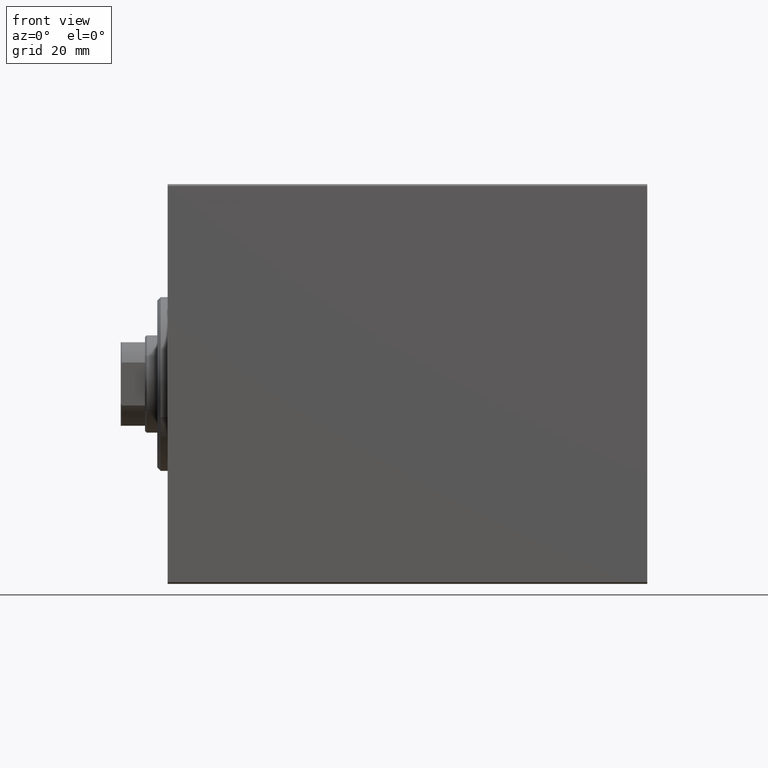
[diagram: clean part render]
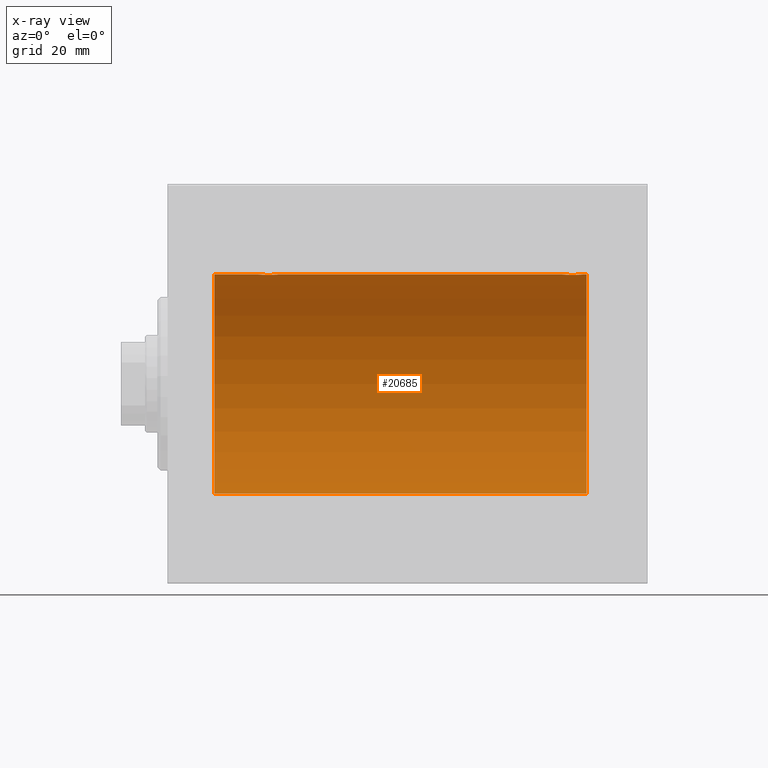
[diagram: x-ray — body ghosted, one internal face saturated and labeled with its STEP entity id]
A machine part, front view, then the same camera in x-ray: the body is ghosted and one INTERNAL B-rep face — a face not visible from any outside direction — is saturated and labeled: STEP entity #20685.
In plain terms, the highlighted cylindrical surface (partial cylindrical patch) has radius 31.5 mm, axis along (-1, -0, -0).
Its self-contained STEP definition (entity closure, byte-faithful):
#961 = CARTESIAN_POINT ( 'NONE',  ( 120.5000000000000000, 0.000000000000000000, 31.50000000000000000 ) ) ;
#1624 = CARTESIAN_POINT ( 'NONE',  ( 28.60640401948893086, 2.980533683278877355, 31.35869737338551388 ) ) ;
#1814 = CARTESIAN_POINT ( 'NONE',  ( 114.1148804265179280, 1.830131931565288195, 31.44721086712686642 ) ) ;
#2040 = CARTESIAN_POINT ( 'NONE',  ( 115.1711104428413392, 2.696796994793650981, 31.38443855856935016 ) ) ;
#2060 = CARTESIAN_POINT ( 'NONE',  ( 30.98257411773193937, 2.260013192167872109, 31.41912713670170376 ) ) ;
#3379 = CARTESIAN_POINT ( 'NONE',  ( 26.00000000000001066, 0.1958503357044829030, 31.50000000000000711 ) ) ;
#3500 = EDGE_CURVE ( 'NONE', #15513, #42584, #23145, .T. ) ;
#4754 = CARTESIAN_POINT ( 'NONE',  ( 28.80529250725175316, 3.000070712257528971, 31.35681067529873189 ) ) ;
#4950 = DIRECTION ( 'NONE',  ( -1.000000000000000000, -0.000000000000000000, -0.000000000000000000 ) ) ;
#4976 = CARTESIAN_POINT ( 'NONE',  ( 30.83158836027363492, 2.384155341399014638, 31.40983767558391193 ) ) ;
#5168 = CARTESIAN_POINT ( 'NONE',  ( 114.9955765329607686, 2.602863964129819241, 31.39246667950590464 ) ) ;
#5612 = CARTESIAN_POINT ( 'NONE',  ( 113.8036818622372124, 1.329867798385260702, 31.47244047903475916 ) ) ;
#5642 = VECTOR ( 'NONE', #42349, 1000.000000000000000 ) ;
#6048 = CARTESIAN_POINT ( 'NONE',  ( 118.8859162663948155, 1.829162098167821604, 31.44727042639136627 ) ) ;
#6491 = ORIENTED_EDGE ( 'NONE', *, *, #15650, .T. ) ;
#6510 = DIRECTION ( 'NONE',  ( 0.000000000000000000, 0.000000000000000000, 1.000000000000000000 ) ) ;
#6533 = VERTEX_POINT ( 'NONE', #30874 ) ;
#6721 = CARTESIAN_POINT ( 'NONE',  ( 26.09639262129909554, 0.7794402936641312563, 31.49094275383852093 ) ) ;
#7422 = CARTESIAN_POINT ( 'NONE',  ( 120.5000000000000000, 0.000000000000000000, 0.000000000000000000 ) ) ;
#8094 = CARTESIAN_POINT ( 'NONE',  ( 31.25924903376736097, 1.983444873066708247, 31.43779820687992554 ) ) ;
#8516 = CARTESIAN_POINT ( 'NONE',  ( 116.1064040194889486, 2.980533683278887569, 31.35869737338551388 ) ) ;
#8726 = CARTESIAN_POINT ( 'NONE',  ( 113.8976413038693636, 1.505293155307508624, 31.46443304312125733 ) ) ;
#8940 = CARTESIAN_POINT ( 'NONE',  ( 115.5344721955793972, 2.847177118681589292, 31.37115363072576102 ) ) ;
#9385 = CARTESIAN_POINT ( 'NONE',  ( 119.4805248189751268, 0.3933386891556650000, 31.49812829325317054 ) ) ;
#9458 = CARTESIAN_POINT ( 'NONE',  ( 120.5000000000000000, 3.857637417314162689E-15, -31.50000000000000000 ) ) ;
#10538 = ORIENTED_EDGE ( 'NONE', *, *, #3500, .T. ) ;
#11864 = CARTESIAN_POINT ( 'NONE',  ( 119.3464921352731238, 0.9675486622706157558, 31.48566161620712478 ) ) ;
#11887 = CARTESIAN_POINT ( 'NONE',  ( 30.50363134844576507, 2.603460270751690508, 31.39242096616744249 ) ) ;
#12088 = CARTESIAN_POINT ( 'NONE',  ( 119.5000000000000284, -2.415502498297804861E-16, 31.50000000000000000 ) ) ;
#12236 = EDGE_CURVE ( 'NONE', #20341, #20384, #39401, .T. ) ;
#12331 = CARTESIAN_POINT ( 'NONE',  ( 26.73894082546058826, 1.981627308739907001, 31.43792063499534351 ) ) ;
#12750 = CARTESIAN_POINT ( 'NONE',  ( 117.2789700859314479, 2.903824817694236504, 31.36589387714387200 ) ) ;
#12773 = CARTESIAN_POINT ( 'NONE',  ( 26.01962964533704081, 0.3947854228308197988, 31.49811339059600002 ) ) ;
#13174 = CIRCLE ( 'NONE', #13887, 31.50000000000000000 ) ;
#13409 = ORIENTED_EDGE ( 'NONE', *, *, #12236, .F. ) ;
#13887 = AXIS2_PLACEMENT_3D ( 'NONE', #19795, #26467, #16001 ) ;
#15004 = ORIENTED_EDGE ( 'NONE', *, *, #28123, .T. ) ;
#15260 = EDGE_CURVE ( 'NONE', #26903, #23937, #13174, .T. ) ;
#15434 = CARTESIAN_POINT ( 'NONE',  ( 118.3315883602736420, 2.384155341399023520, 31.40983767558390483 ) ) ;
#15513 = VERTEX_POINT ( 'NONE', #21097 ) ;
#15650 = EDGE_CURVE ( 'NONE', #20341, #15513, #20604, .T. ) ;
#15870 = CARTESIAN_POINT ( 'NONE',  ( 113.5963926212991311, 0.7794402936641361412, 31.49094275383853514 ) ) ;
#16001 = DIRECTION ( 'NONE',  ( 0.000000000000000000, 0.000000000000000000, 1.000000000000000000 ) ) ;
#16691 = ORIENTED_EDGE ( 'NONE', *, *, #40157, .T. ) ;
#16749 = CARTESIAN_POINT ( 'NONE',  ( 113.5000000000000000, 0.1958503357044810711, 31.50000000000000000 ) ) ;
#17704 = DIRECTION ( 'NONE',  ( -1.000000000000000000, -0.000000000000000000, -0.000000000000000000 ) ) ;
#18635 = CARTESIAN_POINT ( 'NONE',  ( 120.5000000000000000, 0.000000000000000000, 31.50000000000000000 ) ) ;
#18732 = LINE ( 'NONE', #38562, #5642 ) ;
#18801 = CARTESIAN_POINT ( 'NONE',  ( 31.90423806629734926, 0.7769457993854306244, 31.49100119919085472 ) ) ;
#19217 = CARTESIAN_POINT ( 'NONE',  ( 113.6531399839437597, 0.9664718879465890033, 31.48569500832682522 ) ) ;
#19458 = CARTESIAN_POINT ( 'NONE',  ( 26.39764130386935648, 1.505293155307497965, 31.46443304312125022 ) ) ;
#19572 = VECTOR ( 'NONE', #43796, 1000.000000000000000 ) ;
#19795 = CARTESIAN_POINT ( 'NONE',  ( 13.49999999999999822, 0.000000000000000000, 0.000000000000000000 ) ) ;
#20341 = VERTEX_POINT ( 'NONE', #18635 ) ;
#20384 = VERTEX_POINT ( 'NONE', #9458 ) ;
#20545 = CARTESIAN_POINT ( 'NONE',  ( 120.5000000000000000, 0.000000000000000000, 0.000000000000000000 ) ) ;
#20604 = LINE ( 'NONE', #33543, #19572 ) ;
#20685 = ADVANCED_FACE ( 'NONE', ( #21032 ), #28586, .F. ) ;
#20750 = VECTOR ( 'NONE', #4950, 1000.000000000000000 ) ;
#21032 = FACE_OUTER_BOUND ( 'NONE', #43804, .T. ) ;
#21097 = CARTESIAN_POINT ( 'NONE',  ( 119.5000000000000284, -2.415502498297804861E-16, 31.50000000000000000 ) ) ;
#21697 = CARTESIAN_POINT ( 'NONE',  ( 32.00000000000000000, -3.906065418435112189E-16, 31.50000000000000000 ) ) ;
#22139 = CARTESIAN_POINT ( 'NONE',  ( 27.67111044284136057, 2.696796994793635438, 31.38443855856935016 ) ) ;
#22553 = CARTESIAN_POINT ( 'NONE',  ( 114.5191130087499545, 2.261707786034461432, 31.41901301017587755 ) ) ;
#22996 = CARTESIAN_POINT ( 'NONE',  ( 119.1958397180050042, 1.330832861354135144, 31.47239936387595449 ) ) ;
#23145 = B_SPLINE_CURVE_WITH_KNOTS ( 'NONE', 3,
 ( #12088, #39476, #9385, #35913, #11864, #22996, #36138, #6048, #32582, #28787, #15434, #25463, #43281, #35703, #12750, #25895, #42397, #32797, #8516, #25677, #8940, #2040, #5168, #32364, #22553, #29229, #1814, #8726, #5612, #19217, #15870, #24086, #16749, #30331 ),
 .UNSPECIFIED., .F., .F.,
 ( 4, 2, 2, 2, 2, 2, 2, 2, 2, 2, 2, 2, 2, 2, 2, 2, 4 ),
 ( 2.347214371482653179E-19, 0.0005865426616959166020, 0.001173085323391832770, 0.001759627985087748722, 0.002346170646783665107, 0.002932713308479581275, 0.003519255970175497444, 0.004105798631871413612, 0.004692341293567330214, 0.005278883955263246816, 0.005865426616959162551, 0.006451969278655079153, 0.007038511940350995755, 0.007625054602046912357, 0.008211597263742828959, 0.008798139925438744693, 0.009384682587134660428 ),
 .UNSPECIFIED. ) ;
#23676 = CARTESIAN_POINT ( 'NONE',  ( 26.30368186223717331, 1.329867798385257815, 31.47244047903475206 ) ) ;
#23937 = VERTEX_POINT ( 'NONE', #40433 ) ;
#24086 = CARTESIAN_POINT ( 'NONE',  ( 113.5196296453370621, 0.3947854228308227409, 31.49811339059598581 ) ) ;
#24288 = CARTESIAN_POINT ( 'NONE',  ( 13.49999999999999822, 0.000000000000000000, 31.50000000000000000 ) ) ;
#25050 = CARTESIAN_POINT ( 'NONE',  ( 31.99999999999998579, 0.1983379036618942437, 31.50000000000000000 ) ) ;
#25231 = EDGE_CURVE ( 'NONE', #27525, #6533, #36500, .T. ) ;
#25463 = CARTESIAN_POINT ( 'NONE',  ( 118.0036313484458077, 2.603460270751700278, 31.39242096616744959 ) ) ;
#25487 = CARTESIAN_POINT ( 'NONE',  ( 28.22154160523339783, 2.903876953428266461, 31.36588880666517909 ) ) ;
#25677 = CARTESIAN_POINT ( 'NONE',  ( 115.7215416052333836, 2.903876953428275343, 31.36588880666517909 ) ) ;
#25895 = CARTESIAN_POINT ( 'NONE',  ( 116.8916265877483340, 2.980875975682594881, 31.35866508162786559 ) ) ;
#25916 = CARTESIAN_POINT ( 'NONE',  ( 26.61488042651788177, 1.830131931565276426, 31.44721086712685931 ) ) ;
#26467 = DIRECTION ( 'NONE',  ( -1.000000000000000000, 0.000000000000000000, 0.000000000000000000 ) ) ;
#26903 = VERTEX_POINT ( 'NONE', #24288 ) ;
#27525 = VERTEX_POINT ( 'NONE', #31733 ) ;
#28123 = EDGE_CURVE ( 'NONE', #42584, #27525, #31500, .T. ) ;
#28586 = CYLINDRICAL_SURFACE ( 'NONE', #42498, 31.50000000000000000 ) ;
#28595 = CARTESIAN_POINT ( 'NONE',  ( 31.69583971800497935, 1.330832861354130925, 31.47239936387596160 ) ) ;
#28714 = AXIS2_PLACEMENT_3D ( 'NONE', #20545, #30787, #6510 ) ;
#28787 = CARTESIAN_POINT ( 'NONE',  ( 118.4825741177319287, 2.260013192167880547, 31.41912713670171087 ) ) ;
#28809 = CARTESIAN_POINT ( 'NONE',  ( 31.60366586440800063, 1.503114925126257218, 31.46454030768326149 ) ) ;
#29031 = CARTESIAN_POINT ( 'NONE',  ( 29.19688046033348883, 2.999928894260092349, 31.35682424344752306 ) ) ;
#29229 = CARTESIAN_POINT ( 'NONE',  ( 114.2389408254606167, 1.981627308739915216, 31.43792063499535061 ) ) ;
#29253 = CARTESIAN_POINT ( 'NONE',  ( 27.49557653296076154, 2.602863964129807250, 31.39246667950590464 ) ) ;
#29801 = CARTESIAN_POINT ( 'NONE',  ( 113.5000000000000142, -2.116947682205846230E-23, 31.50000000000000000 ) ) ;
#30331 = CARTESIAN_POINT ( 'NONE',  ( 113.5000000000000142, -2.116947682205846230E-23, 31.50000000000000000 ) ) ;
#30787 = DIRECTION ( 'NONE',  ( -1.000000000000000000, 0.000000000000000000, 0.000000000000000000 ) ) ;
#30874 = CARTESIAN_POINT ( 'NONE',  ( 26.00000000000000355, -2.117263226567934635E-23, 31.50000000000000000 ) ) ;
#31500 = LINE ( 'NONE', #961, #43961 ) ;
#31733 = CARTESIAN_POINT ( 'NONE',  ( 32.00000000000000000, -3.906065418435112189E-16, 31.50000000000000000 ) ) ;
#32174 = CARTESIAN_POINT ( 'NONE',  ( 29.39162658774828785, 2.980875975682584222, 31.35866508162785848 ) ) ;
#32364 = CARTESIAN_POINT ( 'NONE',  ( 114.6706141453287131, 2.385694485610543314, 31.40971707706042437 ) ) ;
#32386 = CARTESIAN_POINT ( 'NONE',  ( 30.32915601165003139, 2.696575640577646205, 31.38445666459465500 ) ) ;
#32582 = CARTESIAN_POINT ( 'NONE',  ( 118.7592490337673894, 1.983444873066714020, 31.43779820687993976 ) ) ;
#32607 = CARTESIAN_POINT ( 'NONE',  ( 31.38591626639475862, 1.829162098167815387, 31.44727042639135917 ) ) ;
#32797 = CARTESIAN_POINT ( 'NONE',  ( 116.3052925072517638, 3.000070712257539629, 31.35681067529873189 ) ) ;
#33004 = EDGE_CURVE ( 'NONE', #20384, #23937, #18732, .T. ) ;
#33034 = CARTESIAN_POINT ( 'NONE',  ( 26.00000000000000355, -2.117263226567934635E-23, 31.50000000000000000 ) ) ;
#33543 = CARTESIAN_POINT ( 'NONE',  ( 120.5000000000000000, 0.000000000000000000, 31.50000000000000000 ) ) ;
#33945 = ORIENTED_EDGE ( 'NONE', *, *, #15260, .T. ) ;
#34869 = ORIENTED_EDGE ( 'NONE', *, *, #25231, .T. ) ;
#35277 = CARTESIAN_POINT ( 'NONE',  ( 29.96816165840708379, 2.846197268611679654, 31.37124163027859325 ) ) ;
#35482 = CARTESIAN_POINT ( 'NONE',  ( 120.5000000000000000, 0.000000000000000000, 31.50000000000000000 ) ) ;
#35703 = CARTESIAN_POINT ( 'NONE',  ( 117.4681616584071122, 2.846197268611692088, 31.37124163027859325 ) ) ;
#35723 = CARTESIAN_POINT ( 'NONE',  ( 27.17061414532871311, 2.385694485610531324, 31.40971707706042437 ) ) ;
#35913 = CARTESIAN_POINT ( 'NONE',  ( 119.4042380662973528, 0.7769457993854311795, 31.49100119919085472 ) ) ;
#35937 = CARTESIAN_POINT ( 'NONE',  ( 31.84649213527308120, 0.9675486622706125361, 31.48566161620712478 ) ) ;
#36138 = CARTESIAN_POINT ( 'NONE',  ( 119.1036658644080291, 1.503114925126262547, 31.46454030768325438 ) ) ;
#36500 = B_SPLINE_CURVE_WITH_KNOTS ( 'NONE', 3,
 ( #21697, #25050, #42201, #18801, #35937, #28595, #28809, #32607, #8094, #2060, #4976, #11887, #32386, #35277, #39501, #32174, #29031, #4754, #1624, #25487, #39077, #22139, #29253, #35723, #42864, #12331, #25916, #19458, #23676, #37252, #6721, #12773, #3379, #33034 ),
 .UNSPECIFIED., .F., .F.,
 ( 4, 2, 2, 2, 2, 2, 2, 2, 2, 2, 2, 2, 2, 2, 2, 2, 4 ),
 ( 1.524755128789623575E-18, 0.0005865426616959163852, 0.001173085323391831252, 0.001759627985087746120, 0.002346170646783661204, 0.002932713308479576071, 0.003519255970175490938, 0.004105798631871405806, 0.004692341293567320673, 0.005278883955263235540, 0.005865426616959150408, 0.006451969278655065275, 0.007038511940350980142, 0.007625054602046895010, 0.008211597263742809877, 0.008798139925438723877, 0.009384682587134639611 ),
 .UNSPECIFIED. ) ;
#37252 = CARTESIAN_POINT ( 'NONE',  ( 26.15313998394373840, 0.9664718879465885593, 31.48569500832682522 ) ) ;
#38404 = DIRECTION ( 'NONE',  ( -1.000000000000000000, -0.000000000000000000, -0.000000000000000000 ) ) ;
#38562 = CARTESIAN_POINT ( 'NONE',  ( 120.5000000000000000, 3.857637417314162689E-15, -31.50000000000000000 ) ) ;
#38944 = ORIENTED_EDGE ( 'NONE', *, *, #33004, .F. ) ;
#39077 = CARTESIAN_POINT ( 'NONE',  ( 28.03447219557935099, 2.847177118681576413, 31.37115363072576102 ) ) ;
#39401 = CIRCLE ( 'NONE', #28714, 31.50000000000000000 ) ;
#39476 = CARTESIAN_POINT ( 'NONE',  ( 119.5000000000000568, 0.1983379036618948266, 31.49999999999999289 ) ) ;
#39501 = CARTESIAN_POINT ( 'NONE',  ( 29.77897008593146211, 2.903824817694226290, 31.36589387714387200 ) ) ;
#40157 = EDGE_CURVE ( 'NONE', #6533, #26903, #42834, .T. ) ;
#40433 = CARTESIAN_POINT ( 'NONE',  ( 13.49999999999999822, 3.857637417314162689E-15, -31.50000000000000000 ) ) ;
#41302 = DIRECTION ( 'NONE',  ( 0.000000000000000000, 0.000000000000000000, 1.000000000000000000 ) ) ;
#42201 = CARTESIAN_POINT ( 'NONE',  ( 31.98052481897509836, 0.3933386891556653886, 31.49812829325316343 ) ) ;
#42349 = DIRECTION ( 'NONE',  ( -1.000000000000000000, -0.000000000000000000, -0.000000000000000000 ) ) ;
#42397 = CARTESIAN_POINT ( 'NONE',  ( 116.6968804603335172, 2.999928894260102563, 31.35682424344752306 ) ) ;
#42498 = AXIS2_PLACEMENT_3D ( 'NONE', #7422, #38404, #41302 ) ;
#42584 = VERTEX_POINT ( 'NONE', #29801 ) ;
#42834 = LINE ( 'NONE', #35482, #20750 ) ;
#42864 = CARTESIAN_POINT ( 'NONE',  ( 27.01911300874993316, 2.261707786034451662, 31.41901301017587755 ) ) ;
#43281 = CARTESIAN_POINT ( 'NONE',  ( 117.8291560116500420, 2.696575640577657307, 31.38445666459464789 ) ) ;
#43796 = DIRECTION ( 'NONE',  ( -1.000000000000000000, -0.000000000000000000, -0.000000000000000000 ) ) ;
#43804 = EDGE_LOOP ( 'NONE', ( #38944, #13409, #6491, #10538, #15004, #34869, #16691, #33945 ) ) ;
#43961 = VECTOR ( 'NONE', #17704, 1000.000000000000000 ) ;